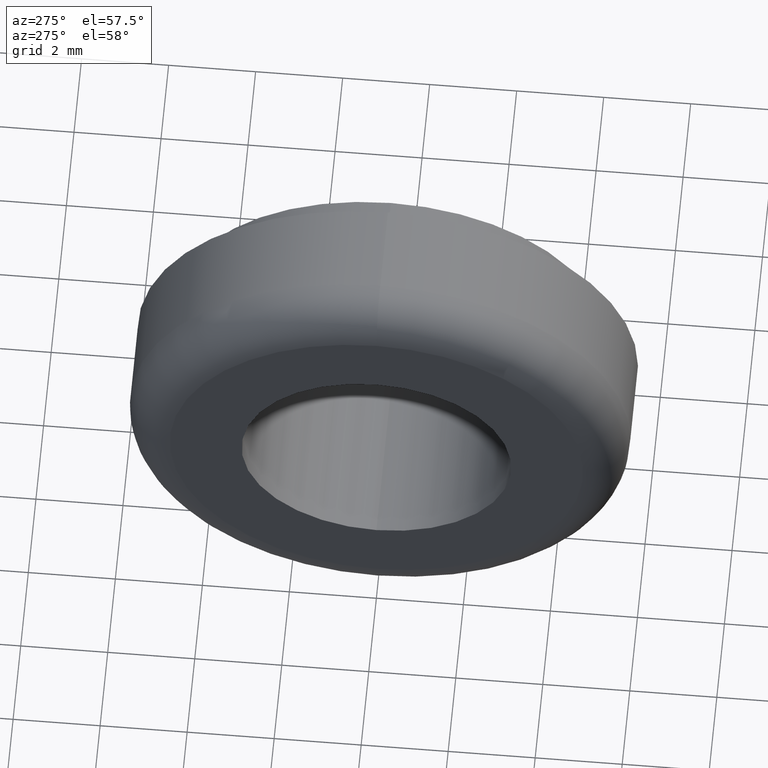
[diagram: clean part render]
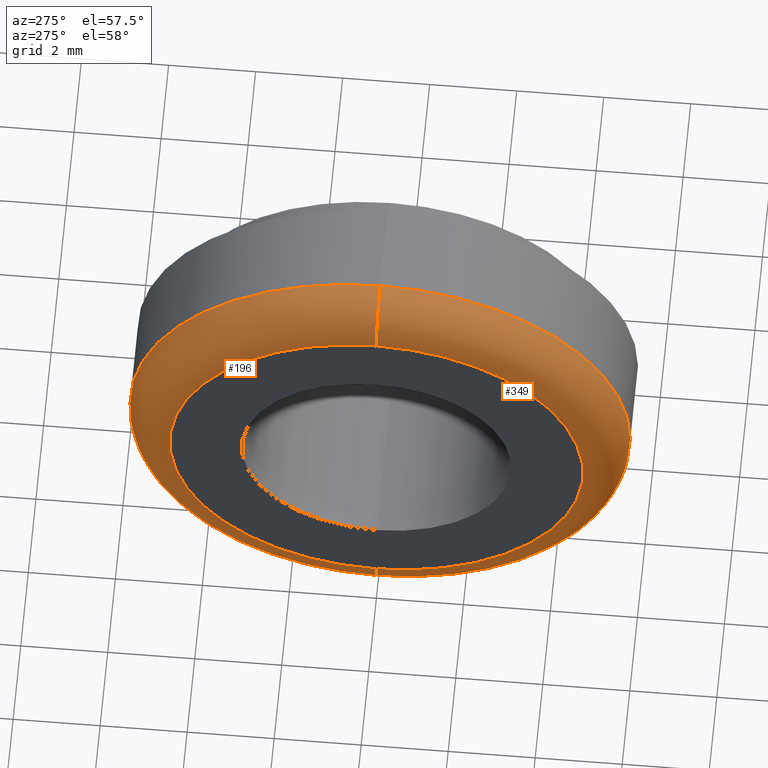
[diagram: same view with one multi-face feature highlighted, each face labeled with its STEP entity id]
A machine part, auxiliary view. The highlighted faces form ONE feature: a constant-radius fillet chain: 2 tangent blend faces with common blend radius 1 mm. The faces share edges in the B-rep.
Their STEP definitions:
[1] entity #196 (Torus):
#5 = ORIENTED_EDGE ( 'NONE', *, *, #72, .F. ) ;
#22 = VERTEX_POINT ( 'NONE', #92 ) ;
#30 = DIRECTION ( 'NONE',  ( 0.0000000000000000000, 1.224646799147353500E-016, 1.000000000000000000 ) ) ;
#35 = CARTESIAN_POINT ( 'NONE',  ( 0.0000000000000000000, 0.0000000000000000000, 0.0000000000000000000 ) ) ;
#57 = CARTESIAN_POINT ( 'NONE',  ( 0.0000000000000000000, 0.0000000000000000000, -4.749999999999999100 ) ) ;
#67 = ORIENTED_EDGE ( 'NONE', *, *, #161, .T. ) ;
#68 = CARTESIAN_POINT ( 'NONE',  ( 0.0000000000000000000, 6.429395695523603200E-016, 4.749999999999999100 ) ) ;
#70 = ORIENTED_EDGE ( 'NONE', *, *, #270, .F. ) ;
#72 = EDGE_CURVE ( 'NONE', #437, #22, #565, .T. ) ;
#76 = EDGE_LOOP ( 'NONE', ( #94, #67, #5, #70 ) ) ;
#86 = VERTEX_POINT ( 'NONE', #57 ) ;
#91 = DIRECTION ( 'NONE',  ( 0.0000000000000000000, 0.0000000000000000000, -1.000000000000000000 ) ) ;
#92 = CARTESIAN_POINT ( 'NONE',  ( 1.000000000000000000, 0.0000000000000000000, 5.749999999999999100 ) ) ;
#94 = ORIENTED_EDGE ( 'NONE', *, *, #468, .F. ) ;
#161 = EDGE_CURVE ( 'NONE', #271, #22, #449, .T. ) ;
#162 = DIRECTION ( 'NONE',  ( 1.000000000000000000, 0.0000000000000000000, 0.0000000000000000000 ) ) ;
#179 = CIRCLE ( 'NONE', #503, 1.000000000000000000 ) ;
#184 = DIRECTION ( 'NONE',  ( 0.0000000000000000000, -1.000000000000000000, 0.0000000000000000000 ) ) ;
#196 = ADVANCED_FACE ( 'NONE', ( #427 ), #307, .T. ) ;
#215 = CARTESIAN_POINT ( 'NONE',  ( 1.000000000000000000, 0.0000000000000000000, 0.0000000000000000000 ) ) ;
#270 = EDGE_CURVE ( 'NONE', #86, #437, #179, .T. ) ;
#271 = VERTEX_POINT ( 'NONE', #68 ) ;
#288 = CARTESIAN_POINT ( 'NONE',  ( 1.000000000000000000, 7.041719095097279900E-016, -5.749999999999999100 ) ) ;
#307 = TOROIDAL_SURFACE ( 'NONE', #322, 4.749999999999999100, 1.000000000000000000 ) ;
#322 = AXIS2_PLACEMENT_3D ( 'NONE', #215, #332, #719 ) ;
#332 = DIRECTION ( 'NONE',  ( 1.000000000000000000, 0.0000000000000000000, 0.0000000000000000000 ) ) ;
#362 = CIRCLE ( 'NONE', #595, 4.749999999999999100 ) ;
#371 = DIRECTION ( 'NONE',  ( 0.0000000000000000000, 1.000000000000000000, -1.224646799147353200E-016 ) ) ;
#427 = FACE_OUTER_BOUND ( 'NONE', #76, .T. ) ;
#432 = DIRECTION ( 'NONE',  ( -1.000000000000000000, -0.0000000000000000000, -0.0000000000000000000 ) ) ;
#437 = VERTEX_POINT ( 'NONE', #288 ) ;
#449 = CIRCLE ( 'NONE', #536, 1.000000000000000000 ) ;
#468 = EDGE_CURVE ( 'NONE', #271, #86, #362, .T. ) ;
#486 = AXIS2_PLACEMENT_3D ( 'NONE', #697, #162, #682 ) ;
#503 = AXIS2_PLACEMENT_3D ( 'NONE', #516, #184, #577 ) ;
#516 = CARTESIAN_POINT ( 'NONE',  ( 1.000000000000000000, 0.0000000000000000000, -4.749999999999999100 ) ) ;
#536 = AXIS2_PLACEMENT_3D ( 'NONE', #707, #371, #30 ) ;
#565 = CIRCLE ( 'NONE', #486, 5.749999999999999100 ) ;
#577 = DIRECTION ( 'NONE',  ( 0.0000000000000000000, 0.0000000000000000000, -1.000000000000000000 ) ) ;
#595 = AXIS2_PLACEMENT_3D ( 'NONE', #35, #432, #91 ) ;
#682 = DIRECTION ( 'NONE',  ( 0.0000000000000000000, 0.0000000000000000000, -1.000000000000000000 ) ) ;
#697 = CARTESIAN_POINT ( 'NONE',  ( 1.000000000000000000, 0.0000000000000000000, 0.0000000000000000000 ) ) ;
#707 = CARTESIAN_POINT ( 'NONE',  ( 1.000000000000000000, 5.817072295949926400E-016, 4.749999999999999100 ) ) ;
#719 = DIRECTION ( 'NONE',  ( 0.0000000000000000000, 0.0000000000000000000, -1.000000000000000000 ) ) ;
[2] entity #349 (Torus):
#1 = DIRECTION ( 'NONE',  ( 0.0000000000000000000, 0.0000000000000000000, -1.000000000000000000 ) ) ;
#16 = CIRCLE ( 'NONE', #269, 5.749999999999999100 ) ;
#22 = VERTEX_POINT ( 'NONE', #92 ) ;
#24 = DIRECTION ( 'NONE',  ( 0.0000000000000000000, 0.0000000000000000000, -1.000000000000000000 ) ) ;
#26 = DIRECTION ( 'NONE',  ( 0.0000000000000000000, 0.0000000000000000000, -1.000000000000000000 ) ) ;
#30 = DIRECTION ( 'NONE',  ( 0.0000000000000000000, 1.224646799147353500E-016, 1.000000000000000000 ) ) ;
#31 = AXIS2_PLACEMENT_3D ( 'NONE', #702, #365, #26 ) ;
#57 = CARTESIAN_POINT ( 'NONE',  ( 0.0000000000000000000, 0.0000000000000000000, -4.749999999999999100 ) ) ;
#68 = CARTESIAN_POINT ( 'NONE',  ( 0.0000000000000000000, 6.429395695523603200E-016, 4.749999999999999100 ) ) ;
#86 = VERTEX_POINT ( 'NONE', #57 ) ;
#92 = CARTESIAN_POINT ( 'NONE',  ( 1.000000000000000000, 0.0000000000000000000, 5.749999999999999100 ) ) ;
#161 = EDGE_CURVE ( 'NONE', #271, #22, #449, .T. ) ;
#165 = ORIENTED_EDGE ( 'NONE', *, *, #161, .F. ) ;
#179 = CIRCLE ( 'NONE', #503, 1.000000000000000000 ) ;
#184 = DIRECTION ( 'NONE',  ( 0.0000000000000000000, -1.000000000000000000, 0.0000000000000000000 ) ) ;
#241 = ORIENTED_EDGE ( 'NONE', *, *, #270, .T. ) ;
#261 = ORIENTED_EDGE ( 'NONE', *, *, #267, .F. ) ;
#267 = EDGE_CURVE ( 'NONE', #22, #437, #16, .T. ) ;
#269 = AXIS2_PLACEMENT_3D ( 'NONE', #673, #339, #1 ) ;
#270 = EDGE_CURVE ( 'NONE', #86, #437, #179, .T. ) ;
#271 = VERTEX_POINT ( 'NONE', #68 ) ;
#288 = CARTESIAN_POINT ( 'NONE',  ( 1.000000000000000000, 7.041719095097279900E-016, -5.749999999999999100 ) ) ;
#298 = TOROIDAL_SURFACE ( 'NONE', #730, 4.749999999999999100, 1.000000000000000000 ) ;
#339 = DIRECTION ( 'NONE',  ( 1.000000000000000000, 0.0000000000000000000, 0.0000000000000000000 ) ) ;
#349 = ADVANCED_FACE ( 'NONE', ( #438 ), #298, .T. ) ;
#365 = DIRECTION ( 'NONE',  ( -1.000000000000000000, -0.0000000000000000000, -0.0000000000000000000 ) ) ;
#371 = DIRECTION ( 'NONE',  ( 0.0000000000000000000, 1.000000000000000000, -1.224646799147353200E-016 ) ) ;
#375 = EDGE_CURVE ( 'NONE', #86, #271, #593, .T. ) ;
#405 = DIRECTION ( 'NONE',  ( 1.000000000000000000, 0.0000000000000000000, 0.0000000000000000000 ) ) ;
#433 = ORIENTED_EDGE ( 'NONE', *, *, #375, .F. ) ;
#437 = VERTEX_POINT ( 'NONE', #288 ) ;
#438 = FACE_OUTER_BOUND ( 'NONE', #703, .T. ) ;
#449 = CIRCLE ( 'NONE', #536, 1.000000000000000000 ) ;
#503 = AXIS2_PLACEMENT_3D ( 'NONE', #516, #184, #577 ) ;
#516 = CARTESIAN_POINT ( 'NONE',  ( 1.000000000000000000, 0.0000000000000000000, -4.749999999999999100 ) ) ;
#536 = AXIS2_PLACEMENT_3D ( 'NONE', #707, #371, #30 ) ;
#577 = DIRECTION ( 'NONE',  ( 0.0000000000000000000, 0.0000000000000000000, -1.000000000000000000 ) ) ;
#593 = CIRCLE ( 'NONE', #31, 4.749999999999999100 ) ;
#673 = CARTESIAN_POINT ( 'NONE',  ( 1.000000000000000000, 0.0000000000000000000, 0.0000000000000000000 ) ) ;
#680 = CARTESIAN_POINT ( 'NONE',  ( 1.000000000000000000, 0.0000000000000000000, 0.0000000000000000000 ) ) ;
#702 = CARTESIAN_POINT ( 'NONE',  ( 0.0000000000000000000, 0.0000000000000000000, 0.0000000000000000000 ) ) ;
#703 = EDGE_LOOP ( 'NONE', ( #165, #433, #241, #261 ) ) ;
#707 = CARTESIAN_POINT ( 'NONE',  ( 1.000000000000000000, 5.817072295949926400E-016, 4.749999999999999100 ) ) ;
#730 = AXIS2_PLACEMENT_3D ( 'NONE', #680, #405, #24 ) ;